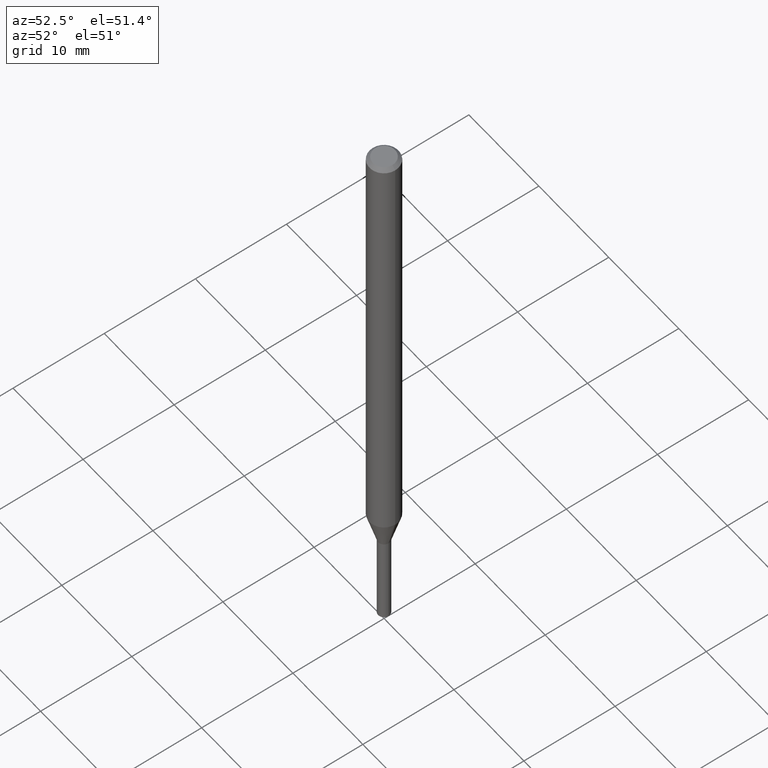
[diagram: clean part render]
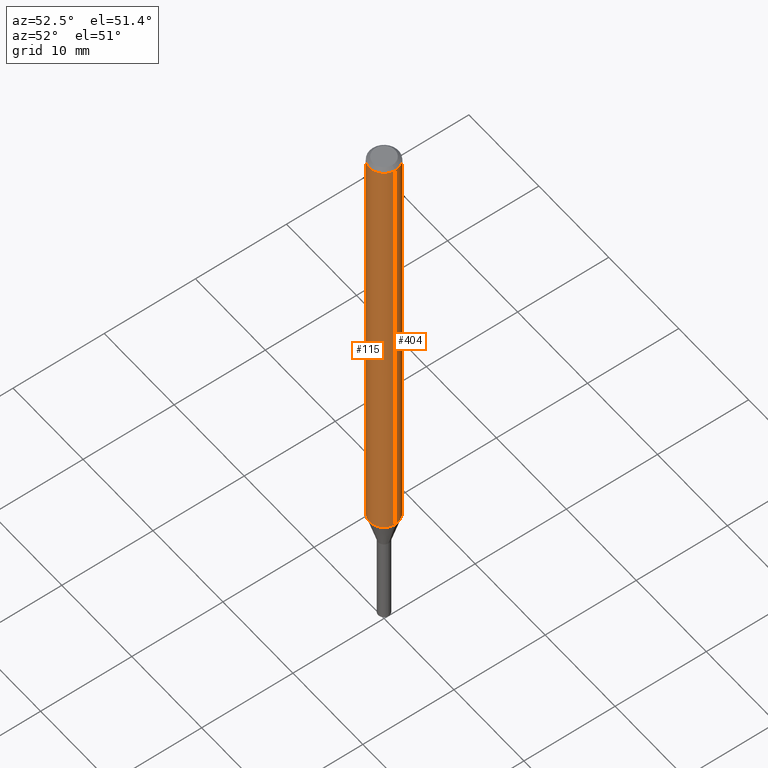
[diagram: same view with one multi-face feature highlighted, each face labeled with its STEP entity id]
A machine part, auxiliary view. The highlighted faces form ONE feature: a constant-radius fillet chain: 2 tangent blend faces with common blend radius 1.5875 mm. The faces share edges in the B-rep.
Their STEP definitions:
[1] entity #115 (Cylinder):
#2 = AXIS2_PLACEMENT_3D ( 'NONE', #19, #84, #307 ) ;
#18 = DIRECTION ( 'NONE',  ( 1.000000000000000000, -6.982962677686262766E-15, 0.000000000000000000 ) ) ;
#19 = CARTESIAN_POINT ( 'NONE',  ( 0.000000000000000000, 0.000000000000000000, 0.000000000000000000 ) ) ;
#33 = CARTESIAN_POINT ( 'NONE',  ( -0.06250000000000000000, -3.003832573159543008E-15, -0.01499999999999999944 ) ) ;
#48 = AXIS2_PLACEMENT_3D ( 'NONE', #448, #454, #413 ) ;
#61 = VERTEX_POINT ( 'NONE', #33 ) ;
#73 = CARTESIAN_POINT ( 'NONE',  ( 0.06250000000000000000, -4.364351673553916694E-16, 3.047610484872459871E-30 ) ) ;
#81 = FACE_OUTER_BOUND ( 'NONE', #269, .T. ) ;
#84 = DIRECTION ( 'NONE',  ( -2.445468806185136597E-29, 3.491481338843145583E-15, 1.000000000000000000 ) ) ;
#91 = ORIENTED_EDGE ( 'NONE', *, *, #282, .T. ) ;
#115 = ADVANCED_FACE ( 'NONE', ( #81 ), #299, .T. ) ;
#134 = CIRCLE ( 'NONE', #167, 0.06250000000000000000 ) ;
#141 = EDGE_CURVE ( 'NONE', #356, #388, #247, .T. ) ;
#150 = CIRCLE ( 'NONE', #48, 0.06250000000000000000 ) ;
#158 = ORIENTED_EDGE ( 'NONE', *, *, #141, .T. ) ;
#160 = CARTESIAN_POINT ( 'NONE',  ( -0.06250000000000000000, 4.440892098500626162E-16, -3.074334431409316114E-30 ) ) ;
#167 = AXIS2_PLACEMENT_3D ( 'NONE', #193, #238, #18 ) ;
#183 = ORIENTED_EDGE ( 'NONE', *, *, #320, .F. ) ;
#186 = LINE ( 'NONE', #160, #239 ) ;
#189 = CARTESIAN_POINT ( 'NONE',  ( -0.06249999999999999306, -6.399382136086501158E-15, -1.960048094716168254 ) ) ;
#193 = CARTESIAN_POINT ( 'NONE',  ( 4.793236474250999839E-29, -6.843471345936563774E-15, -1.960048094716168254 ) ) ;
#194 = ORIENTED_EDGE ( 'NONE', *, *, #352, .F. ) ;
#238 = DIRECTION ( 'NONE',  ( -2.445468806185136597E-29, 3.491481338843145583E-15, 1.000000000000000000 ) ) ;
#239 = VECTOR ( 'NONE', #317, 39.37007874015748143 ) ;
#247 = LINE ( 'NONE', #73, #446 ) ;
#269 = EDGE_LOOP ( 'NONE', ( #183, #91, #158, #194 ) ) ;
#273 = VERTEX_POINT ( 'NONE', #189 ) ;
#282 = EDGE_CURVE ( 'NONE', #273, #356, #134, .T. ) ;
#291 = DIRECTION ( 'NONE',  ( -2.445468806185136877E-29, 3.491481338843145188E-15, 1.000000000000000000 ) ) ;
#299 = CYLINDRICAL_SURFACE ( 'NONE', #2, 0.06250000000000000000 ) ;
#307 = DIRECTION ( 'NONE',  ( 1.000000000000000000, -6.982962677686266711E-15, 4.876176775795935793E-29 ) ) ;
#317 = DIRECTION ( 'NONE',  ( -2.445468806185136877E-29, 3.491481338843145188E-15, 1.000000000000000000 ) ) ;
#320 = EDGE_CURVE ( 'NONE', #273, #61, #186, .T. ) ;
#342 = CARTESIAN_POINT ( 'NONE',  ( 0.06250000000000000000, -4.888073874380388472E-16, -0.01499999999999999944 ) ) ;
#352 = EDGE_CURVE ( 'NONE', #61, #388, #150, .T. ) ;
#356 = VERTEX_POINT ( 'NONE', #377 ) ;
#377 = CARTESIAN_POINT ( 'NONE',  ( 0.06249999999999999306, -7.279906513291955444E-15, -1.960048094716168254 ) ) ;
#388 = VERTEX_POINT ( 'NONE', #342 ) ;
#413 = DIRECTION ( 'NONE',  ( 1.000000000000000000, -6.982962677686266711E-15, 0.000000000000000000 ) ) ;
#446 = VECTOR ( 'NONE', #291, 39.37007874015748143 ) ;
#448 = CARTESIAN_POINT ( 'NONE',  ( 3.668203209277705088E-31, -5.237222008264718399E-17, -0.01499999999999999944 ) ) ;
#454 = DIRECTION ( 'NONE',  ( -2.445468806185136597E-29, 3.491481338843145583E-15, 1.000000000000000000 ) ) ;
[2] entity #404 (Cylinder):
#21 = CARTESIAN_POINT ( 'NONE',  ( 3.668203209277705088E-31, -5.237222008264718399E-17, -0.01499999999999999944 ) ) ;
#33 = CARTESIAN_POINT ( 'NONE',  ( -0.06250000000000000000, -3.003832573159543008E-15, -0.01499999999999999944 ) ) ;
#37 = CIRCLE ( 'NONE', #416, 0.06250000000000000000 ) ;
#54 = ORIENTED_EDGE ( 'NONE', *, *, #346, .T. ) ;
#61 = VERTEX_POINT ( 'NONE', #33 ) ;
#69 = ORIENTED_EDGE ( 'NONE', *, *, #320, .T. ) ;
#73 = CARTESIAN_POINT ( 'NONE',  ( 0.06250000000000000000, -4.364351673553916694E-16, 3.047610484872459871E-30 ) ) ;
#85 = DIRECTION ( 'NONE',  ( -2.445468806185136597E-29, 3.491481338843145583E-15, 1.000000000000000000 ) ) ;
#98 = EDGE_LOOP ( 'NONE', ( #54, #69, #199, #419 ) ) ;
#135 = CYLINDRICAL_SURFACE ( 'NONE', #398, 0.06250000000000000000 ) ;
#141 = EDGE_CURVE ( 'NONE', #356, #388, #247, .T. ) ;
#142 = DIRECTION ( 'NONE',  ( 1.000000000000000000, -6.982962677686266711E-15, 4.876176775795935793E-29 ) ) ;
#160 = CARTESIAN_POINT ( 'NONE',  ( -0.06250000000000000000, 4.440892098500626162E-16, -3.074334431409316114E-30 ) ) ;
#172 = CARTESIAN_POINT ( 'NONE',  ( 0.000000000000000000, 0.000000000000000000, 0.000000000000000000 ) ) ;
#186 = LINE ( 'NONE', #160, #239 ) ;
#189 = CARTESIAN_POINT ( 'NONE',  ( -0.06249999999999999306, -6.399382136086501158E-15, -1.960048094716168254 ) ) ;
#199 = ORIENTED_EDGE ( 'NONE', *, *, #241, .F. ) ;
#239 = VECTOR ( 'NONE', #317, 39.37007874015748143 ) ;
#241 = EDGE_CURVE ( 'NONE', #388, #61, #451, .T. ) ;
#247 = LINE ( 'NONE', #73, #446 ) ;
#273 = VERTEX_POINT ( 'NONE', #189 ) ;
#291 = DIRECTION ( 'NONE',  ( -2.445468806185136877E-29, 3.491481338843145188E-15, 1.000000000000000000 ) ) ;
#303 = DIRECTION ( 'NONE',  ( -2.445468806185136597E-29, 3.491481338843145583E-15, 1.000000000000000000 ) ) ;
#309 = DIRECTION ( 'NONE',  ( 1.000000000000000000, -6.982962677686266711E-15, 0.000000000000000000 ) ) ;
#317 = DIRECTION ( 'NONE',  ( -2.445468806185136877E-29, 3.491481338843145188E-15, 1.000000000000000000 ) ) ;
#320 = EDGE_CURVE ( 'NONE', #273, #61, #186, .T. ) ;
#342 = CARTESIAN_POINT ( 'NONE',  ( 0.06250000000000000000, -4.888073874380388472E-16, -0.01499999999999999944 ) ) ;
#346 = EDGE_CURVE ( 'NONE', #356, #273, #37, .T. ) ;
#356 = VERTEX_POINT ( 'NONE', #377 ) ;
#365 = FACE_OUTER_BOUND ( 'NONE', #98, .T. ) ;
#377 = CARTESIAN_POINT ( 'NONE',  ( 0.06249999999999999306, -7.279906513291955444E-15, -1.960048094716168254 ) ) ;
#378 = AXIS2_PLACEMENT_3D ( 'NONE', #21, #303, #309 ) ;
#388 = VERTEX_POINT ( 'NONE', #342 ) ;
#398 = AXIS2_PLACEMENT_3D ( 'NONE', #172, #465, #142 ) ;
#404 = ADVANCED_FACE ( 'NONE', ( #365 ), #135, .T. ) ;
#416 = AXIS2_PLACEMENT_3D ( 'NONE', #449, #85, #421 ) ;
#419 = ORIENTED_EDGE ( 'NONE', *, *, #141, .F. ) ;
#421 = DIRECTION ( 'NONE',  ( 1.000000000000000000, -6.982962677686262766E-15, 0.000000000000000000 ) ) ;
#446 = VECTOR ( 'NONE', #291, 39.37007874015748143 ) ;
#449 = CARTESIAN_POINT ( 'NONE',  ( 4.793236474250999839E-29, -6.843471345936563774E-15, -1.960048094716168254 ) ) ;
#451 = CIRCLE ( 'NONE', #378, 0.06250000000000000000 ) ;
#465 = DIRECTION ( 'NONE',  ( -2.445468806185136597E-29, 3.491481338843145583E-15, 1.000000000000000000 ) ) ;